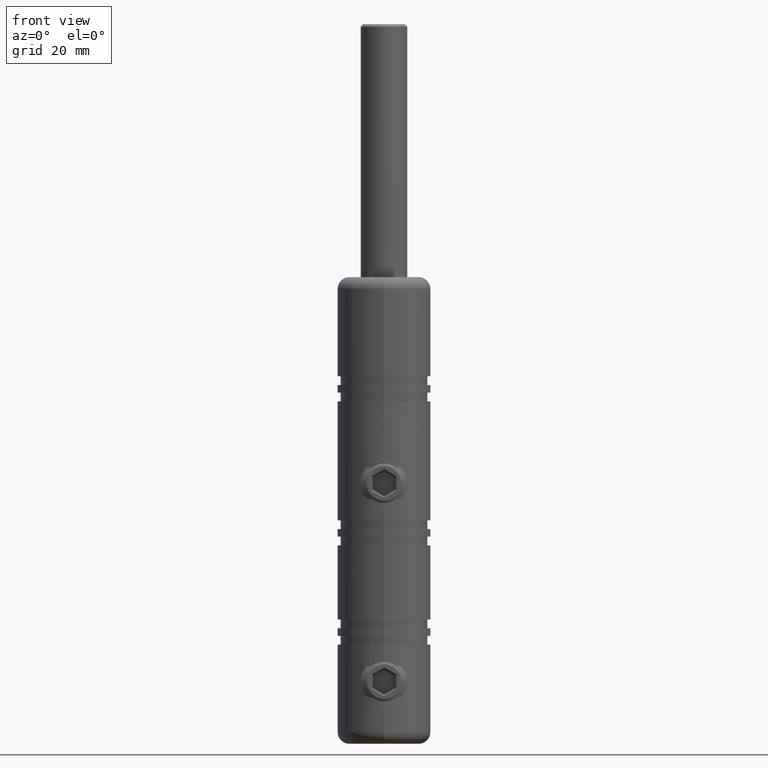
[diagram: clean part render]
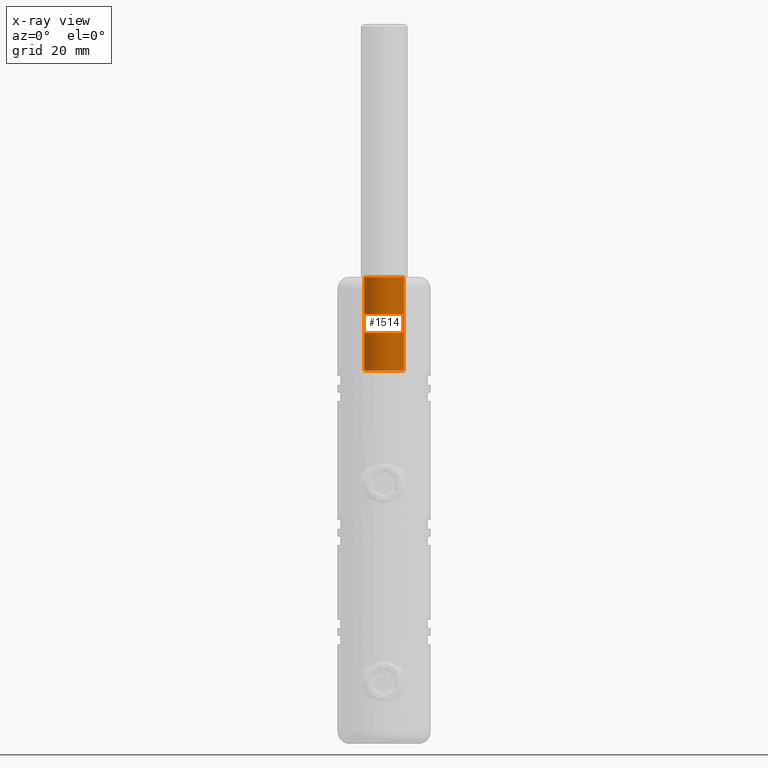
[diagram: x-ray — body ghosted, one internal face saturated and labeled with its STEP entity id]
A machine part, front view, then the same camera in x-ray: the body is ghosted and one INTERNAL B-rep face — a face not visible from any outside direction — is saturated and labeled: STEP entity #1514.
In plain terms, the highlighted cylindrical surface (edge-blend (fillet) strip) has radius 3.4 mm, axis along (0, 0, 1).
Its self-contained STEP definition (entity closure, byte-faithful):
#151 = LINE ( 'NONE', #16371, #1164 ) ;
#626 = VERTEX_POINT ( 'NONE', #9536 ) ;
#715 = EDGE_CURVE ( 'NONE', #12652, #10417, #10968, .T. ) ;
#820 = DIRECTION ( 'NONE',  ( -0.0000000000000000000, -0.0000000000000000000, 1.000000000000000000 ) ) ;
#1164 = VECTOR ( 'NONE', #17485, 1000.000000000000000 ) ;
#1334 = CARTESIAN_POINT ( 'NONE',  ( 0.0000000000000000000, 4.206008368459476300E-015, 40.00000000000000000 ) ) ;
#1514 = ADVANCED_FACE ( 'NONE', ( #9692 ), #12855, .F. ) ;
#1717 = ORIENTED_EDGE ( 'NONE', *, *, #715, .F. ) ;
#2160 = DIRECTION ( 'NONE',  ( -0.0000000000000000000, -0.0000000000000000000, 1.000000000000000000 ) ) ;
#2349 = ORIENTED_EDGE ( 'NONE', *, *, #7336, .T. ) ;
#2358 = CARTESIAN_POINT ( 'NONE',  ( 3.399999999999997700, 4.206008368459476300E-015, 40.00000000000000000 ) ) ;
#2359 = AXIS2_PLACEMENT_3D ( 'NONE', #1334, #5234, #6574 ) ;
#3818 = EDGE_CURVE ( 'NONE', #8040, #10417, #6503, .T. ) ;
#5234 = DIRECTION ( 'NONE',  ( -0.0000000000000000000, -0.0000000000000000000, 1.000000000000000000 ) ) ;
#5788 = DIRECTION ( 'NONE',  ( 1.000000000000000000, 0.0000000000000000000, 0.0000000000000000000 ) ) ;
#6503 = CIRCLE ( 'NONE', #2359, 3.399999999999997700 ) ;
#6574 = DIRECTION ( 'NONE',  ( 1.000000000000000000, 0.0000000000000000000, 0.0000000000000000000 ) ) ;
#6679 = CARTESIAN_POINT ( 'NONE',  ( 3.399999999999995900, 4.206008368459476300E-015, 24.00000000000000000 ) ) ;
#7336 = EDGE_CURVE ( 'NONE', #626, #8040, #151, .T. ) ;
#7591 = ORIENTED_EDGE ( 'NONE', *, *, #3818, .T. ) ;
#7745 = AXIS2_PLACEMENT_3D ( 'NONE', #11527, #820, #17058 ) ;
#8040 = VERTEX_POINT ( 'NONE', #13181 ) ;
#8425 = ORIENTED_EDGE ( 'NONE', *, *, #16285, .F. ) ;
#9230 = CIRCLE ( 'NONE', #7745, 3.399999999999995900 ) ;
#9536 = CARTESIAN_POINT ( 'NONE',  ( -3.399999999999995900, 4.622388280169576000E-015, 24.00000000000000000 ) ) ;
#9692 = FACE_OUTER_BOUND ( 'NONE', #10899, .T. ) ;
#9709 = VECTOR ( 'NONE', #2160, 1000.000000000000000 ) ;
#9803 = DIRECTION ( 'NONE',  ( -0.0000000000000000000, -0.0000000000000000000, 1.000000000000000000 ) ) ;
#10417 = VERTEX_POINT ( 'NONE', #2358 ) ;
#10899 = EDGE_LOOP ( 'NONE', ( #8425, #2349, #7591, #1717 ) ) ;
#10968 = LINE ( 'NONE', #12949, #9709 ) ;
#11527 = CARTESIAN_POINT ( 'NONE',  ( 0.0000000000000000000, 4.206008368459476300E-015, 24.00000000000000000 ) ) ;
#12418 = CARTESIAN_POINT ( 'NONE',  ( 0.0000000000000000000, 4.206008368459476300E-015, 40.00000000000000000 ) ) ;
#12652 = VERTEX_POINT ( 'NONE', #6679 ) ;
#12855 = CYLINDRICAL_SURFACE ( 'NONE', #13745, 3.399999999999996800 ) ;
#12949 = CARTESIAN_POINT ( 'NONE',  ( 3.399999999999996800, 4.206008368459476300E-015, 40.00000000000000000 ) ) ;
#13181 = CARTESIAN_POINT ( 'NONE',  ( -3.399999999999997700, 4.622388280169576000E-015, 40.00000000000000000 ) ) ;
#13745 = AXIS2_PLACEMENT_3D ( 'NONE', #12418, #9803, #5788 ) ;
#16285 = EDGE_CURVE ( 'NONE', #626, #12652, #9230, .T. ) ;
#16371 = CARTESIAN_POINT ( 'NONE',  ( -3.399999999999996800, 4.622388280169576000E-015, 40.00000000000000000 ) ) ;
#17058 = DIRECTION ( 'NONE',  ( 1.000000000000000000, 0.0000000000000000000, 0.0000000000000000000 ) ) ;
#17485 = DIRECTION ( 'NONE',  ( -0.0000000000000000000, -0.0000000000000000000, 1.000000000000000000 ) ) ;